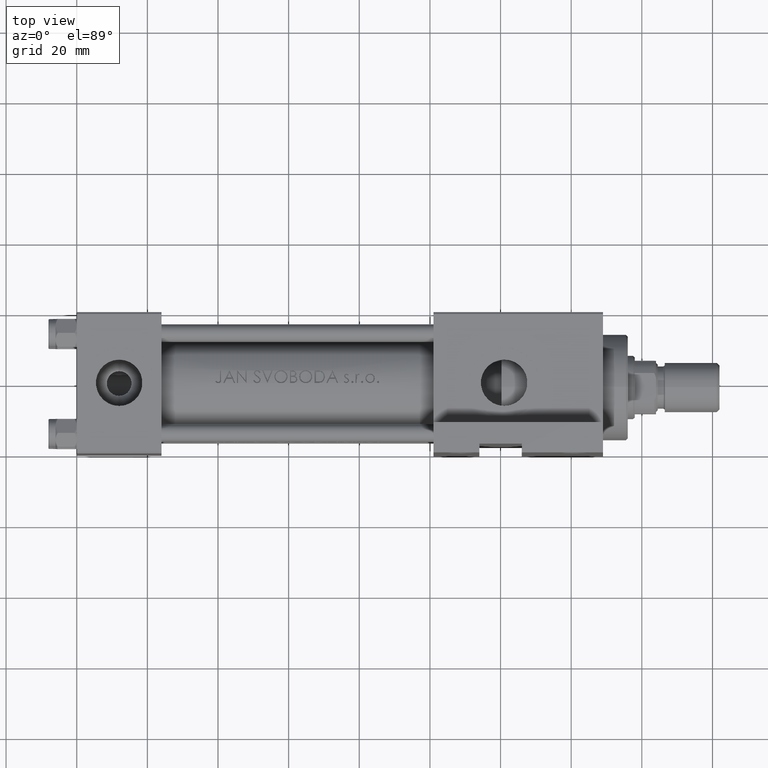
[diagram: clean part render]
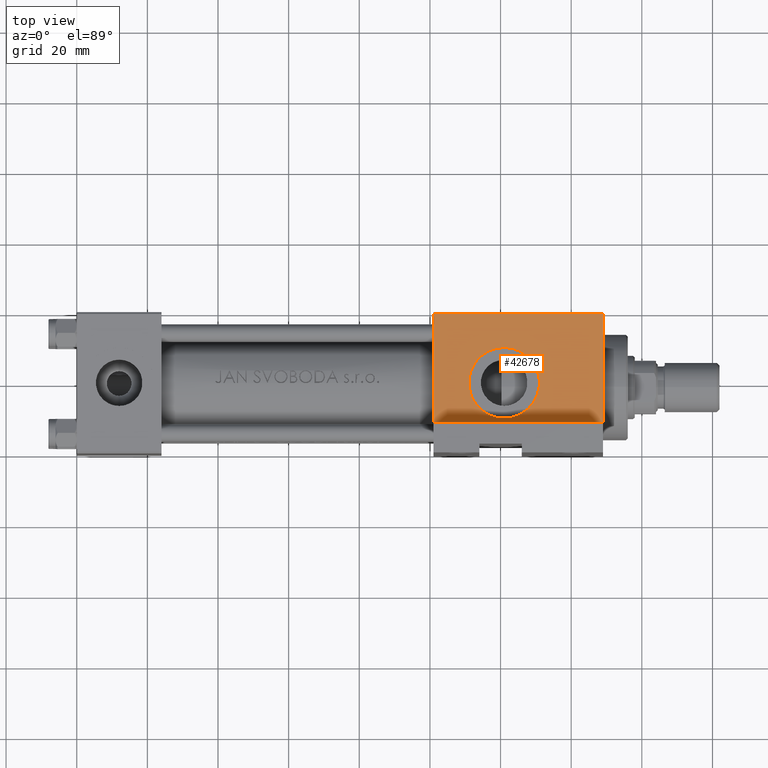
[diagram: same view with one face highlighted and labeled with its STEP entity id]
A machine part, top view. The second image highlights one B-rep face of the part: STEP entity #42678.
In plain terms, the highlighted planar face has unit normal (0, 0, -1).
Its self-contained STEP definition (entity closure, byte-faithful):
#698 = CARTESIAN_POINT ( 'NONE',  ( 121.0000000000000142, -20.00000000000000355, -9.999999999999996447 ) ) ;
#1992 = CARTESIAN_POINT ( 'NONE',  ( 121.0000000000000142, -20.00000000000000355, 9.999999999999992895 ) ) ;
#3275 = CIRCLE ( 'NONE', #25806, 9.999999999999994671 ) ;
#3511 = CARTESIAN_POINT ( 'NONE',  ( 149.0000000000000284, -20.00000000000000355, 19.99999999999999645 ) ) ;
#7098 = AXIS2_PLACEMENT_3D ( 'NONE', #27583, #24790, #39147 ) ;
#9778 = DIRECTION ( 'NONE',  ( 0.000000000000000000, 0.000000000000000000, -1.000000000000000000 ) ) ;
#10588 = EDGE_CURVE ( 'NONE', #10808, #22019, #32154, .T. ) ;
#10808 = VERTEX_POINT ( 'NONE', #45445 ) ;
#11222 = VECTOR ( 'NONE', #42012, 1000.000000000000000 ) ;
#11963 = CARTESIAN_POINT ( 'NONE',  ( 101.0000000000000000, -20.00000000000000355, 19.49999999999999645 ) ) ;
#13391 = CIRCLE ( 'NONE', #7098, 9.999999999999994671 ) ;
#14446 = CARTESIAN_POINT ( 'NONE',  ( 101.0000000000000000, -20.00000000000000355, 19.99999999999999645 ) ) ;
#16713 = DIRECTION ( 'NONE',  ( -0.000000000000000000, 1.000000000000000000, 8.673617379884036705E-17 ) ) ;
#19238 = LINE ( 'NONE', #14446, #27015 ) ;
#20499 = FACE_OUTER_BOUND ( 'NONE', #45396, .T. ) ;
#21007 = CARTESIAN_POINT ( 'NONE',  ( 149.0000000000000284, -20.00000000000000355, 19.99999999999999645 ) ) ;
#21113 = CARTESIAN_POINT ( 'NONE',  ( 121.0000000000000142, -20.00000000000000355, -1.734723475976807883E-15 ) ) ;
#22019 = VERTEX_POINT ( 'NONE', #47228 ) ;
#22435 = VERTEX_POINT ( 'NONE', #11963 ) ;
#24107 = LINE ( 'NONE', #42496, #29504 ) ;
#24790 = DIRECTION ( 'NONE',  ( 0.000000000000000000, -1.000000000000000000, -8.673617379884036705E-17 ) ) ;
#24833 = CARTESIAN_POINT ( 'NONE',  ( 101.0000000000000000, -20.00000000000000355, -11.50000000000000000 ) ) ;
#25806 = AXIS2_PLACEMENT_3D ( 'NONE', #21113, #48510, #9778 ) ;
#27015 = VECTOR ( 'NONE', #29836, 1000.000000000000000 ) ;
#27041 = EDGE_CURVE ( 'NONE', #22435, #10808, #19238, .T. ) ;
#27583 = CARTESIAN_POINT ( 'NONE',  ( 121.0000000000000142, -20.00000000000000355, -1.734723475976807883E-15 ) ) ;
#28043 = VERTEX_POINT ( 'NONE', #49383 ) ;
#28368 = DIRECTION ( 'NONE',  ( 1.000000000000000000, -1.445602896647340396E-16, 0.000000000000000000 ) ) ;
#29504 = VECTOR ( 'NONE', #31920, 1000.000000000000000 ) ;
#29836 = DIRECTION ( 'NONE',  ( 0.000000000000000000, 8.673617379884036705E-17, -1.000000000000000000 ) ) ;
#30836 = EDGE_LOOP ( 'NONE', ( #40411, #48477 ) ) ;
#31920 = DIRECTION ( 'NONE',  ( -1.000000000000000000, 0.000000000000000000, 0.000000000000000000 ) ) ;
#32093 = DIRECTION ( 'NONE',  ( 0.000000000000000000, -8.673617379884036705E-17, 1.000000000000000000 ) ) ;
#32145 = VERTEX_POINT ( 'NONE', #1992 ) ;
#32154 = LINE ( 'NONE', #24833, #46332 ) ;
#32411 = EDGE_CURVE ( 'NONE', #48941, #32145, #13391, .T. ) ;
#33258 = EDGE_CURVE ( 'NONE', #28043, #22435, #24107, .T. ) ;
#33311 = ORIENTED_EDGE ( 'NONE', *, *, #46874, .F. ) ;
#34799 = ORIENTED_EDGE ( 'NONE', *, *, #10588, .T. ) ;
#35854 = PLANE ( 'NONE',  #38704 ) ;
#38704 = AXIS2_PLACEMENT_3D ( 'NONE', #21007, #16713, #32093 ) ;
#39147 = DIRECTION ( 'NONE',  ( 0.000000000000000000, 0.000000000000000000, -1.000000000000000000 ) ) ;
#39965 = ORIENTED_EDGE ( 'NONE', *, *, #27041, .T. ) ;
#40124 = FACE_BOUND ( 'NONE', #30836, .T. ) ;
#40411 = ORIENTED_EDGE ( 'NONE', *, *, #32411, .F. ) ;
#41890 = EDGE_CURVE ( 'NONE', #32145, #48941, #3275, .T. ) ;
#42012 = DIRECTION ( 'NONE',  ( 0.000000000000000000, 8.673617379884036705E-17, -1.000000000000000000 ) ) ;
#42496 = CARTESIAN_POINT ( 'NONE',  ( 149.0000000000000284, -20.00000000000000355, 19.49999999999999645 ) ) ;
#42678 = ADVANCED_FACE ( 'NONE', ( #40124, #20499 ), #35854, .F. ) ;
#45396 = EDGE_LOOP ( 'NONE', ( #33311, #47878, #39965, #34799 ) ) ;
#45445 = CARTESIAN_POINT ( 'NONE',  ( 101.0000000000000000, -20.00000000000000355, -11.50000000000000000 ) ) ;
#46332 = VECTOR ( 'NONE', #28368, 1000.000000000000000 ) ;
#46874 = EDGE_CURVE ( 'NONE', #28043, #22019, #49548, .T. ) ;
#47228 = CARTESIAN_POINT ( 'NONE',  ( 149.0000000000000284, -20.00000000000000000, -11.50000000000000355 ) ) ;
#47878 = ORIENTED_EDGE ( 'NONE', *, *, #33258, .T. ) ;
#48477 = ORIENTED_EDGE ( 'NONE', *, *, #41890, .F. ) ;
#48510 = DIRECTION ( 'NONE',  ( 0.000000000000000000, -1.000000000000000000, -8.673617379884036705E-17 ) ) ;
#48941 = VERTEX_POINT ( 'NONE', #698 ) ;
#49383 = CARTESIAN_POINT ( 'NONE',  ( 149.0000000000000284, -20.00000000000000355, 19.49999999999999645 ) ) ;
#49548 = LINE ( 'NONE', #3511, #11222 ) ;